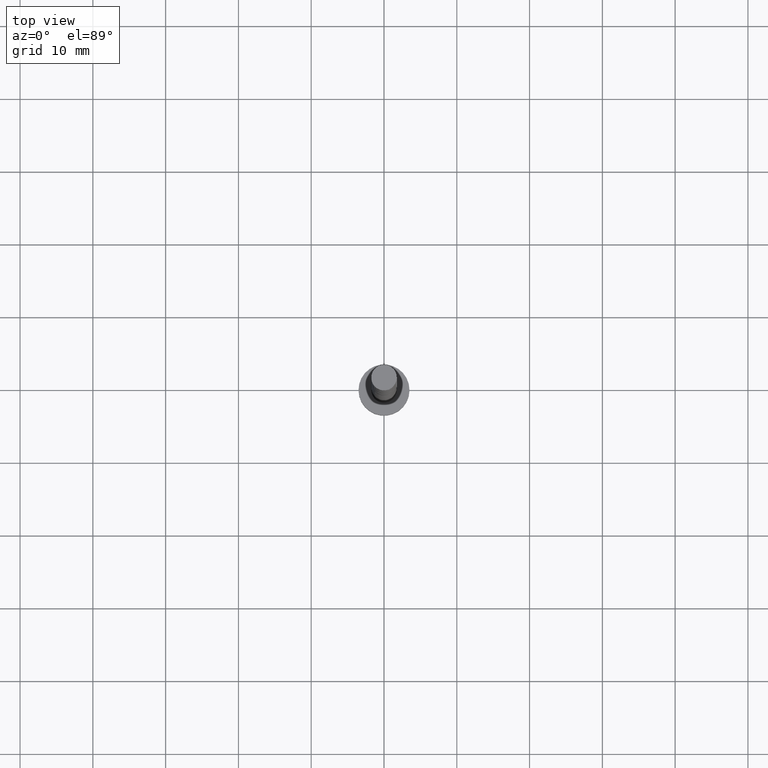
[diagram: clean part render]
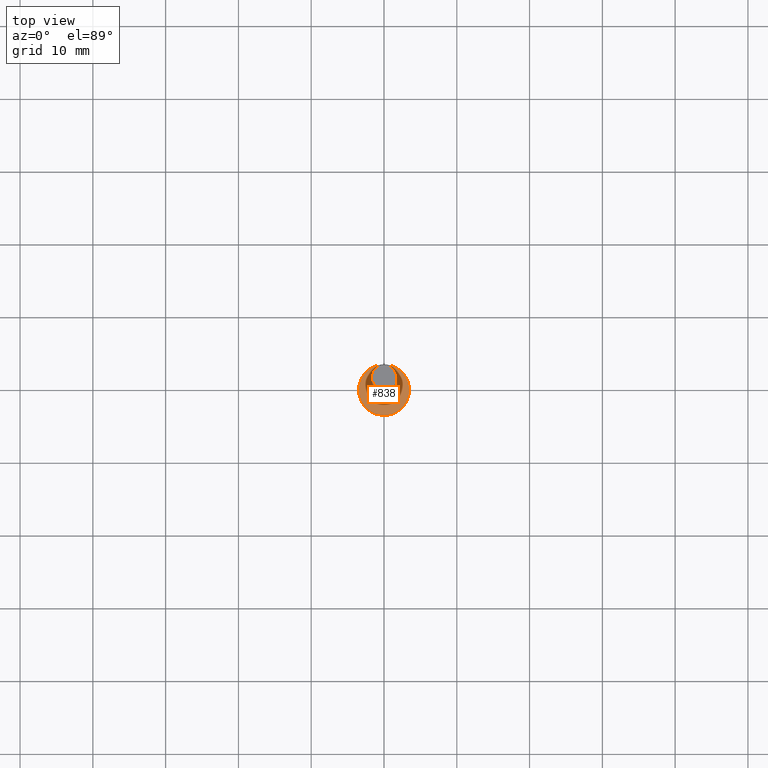
[diagram: same view with one face highlighted and labeled with its STEP entity id]
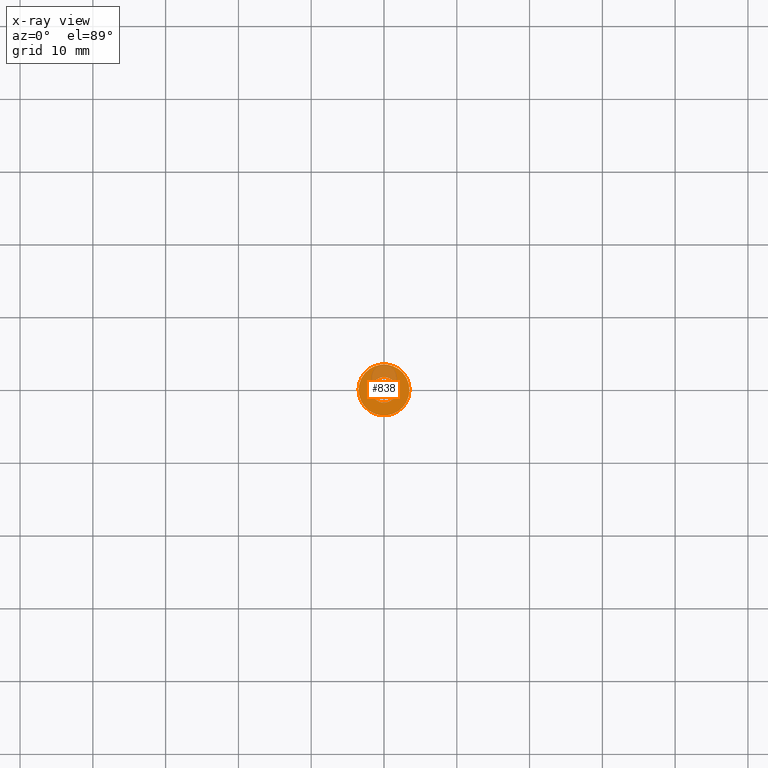
[diagram: x-ray of the same camera — body ghosted, the highlighted face saturated]
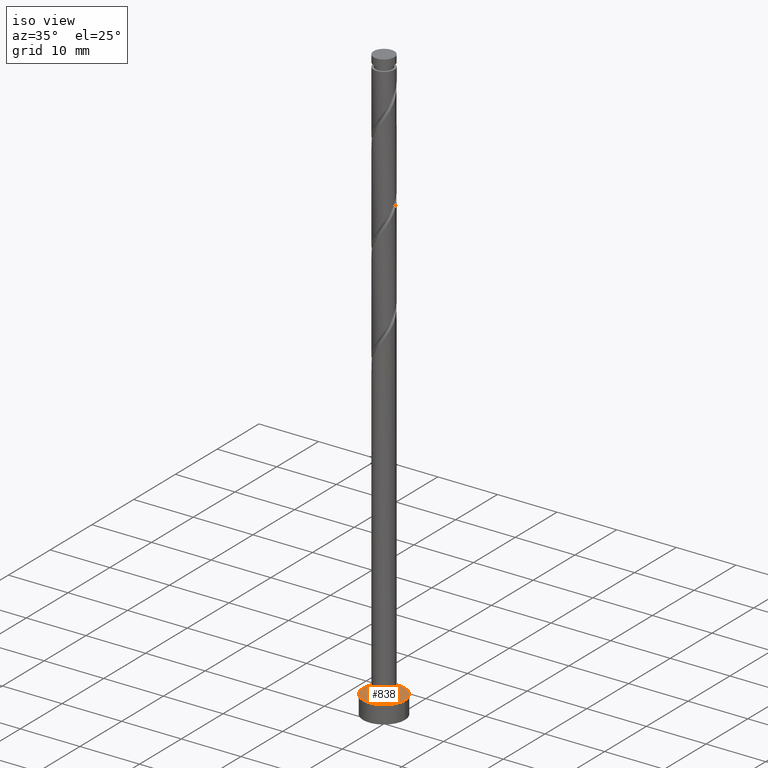
[diagram: same view with one face highlighted and labeled with its STEP entity id]
A machine part, top view. The second image highlights one B-rep face of the part: STEP entity #838.
The next image is the same camera in x-ray: the body ghosted, the highlighted face saturated — about 21% of this face is hidden behind the body in this view.
A second angle (iso view) of the same face is appended — the face is thin or edge-on in the first view.
In plain terms, the highlighted planar face has unit normal (0, 0, 1).
Its self-contained STEP definition (entity closure, byte-faithful):
#46 = CARTESIAN_POINT ( 'NONE',  ( 1.750000000000000000, 2.143131898507867804E-16, 3.000000000000000000 ) ) ;
#178 = EDGE_CURVE ( 'NONE', #1166, #1127, #1300, .T. ) ;
#180 = ORIENTED_EDGE ( 'NONE', *, *, #882, .T. ) ;
#206 = CIRCLE ( 'NONE', #448, 3.500000000000000000 ) ;
#218 = PLANE ( 'NONE',  #733 ) ;
#222 = VERTEX_POINT ( 'NONE', #326 ) ;
#245 = EDGE_CURVE ( 'NONE', #222, #629, #1126, .T. ) ;
#284 = AXIS2_PLACEMENT_3D ( 'NONE', #904, #1133, #667 ) ;
#323 = FACE_BOUND ( 'NONE', #1020, .T. ) ;
#326 = CARTESIAN_POINT ( 'NONE',  ( -3.500000000000000000, 0.000000000000000000, 3.000000000000000000 ) ) ;
#331 = DIRECTION ( 'NONE',  ( 1.000000000000000000, 0.000000000000000000, -0.000000000000000000 ) ) ;
#391 = EDGE_CURVE ( 'NONE', #1127, #1166, #1154, .T. ) ;
#448 = AXIS2_PLACEMENT_3D ( 'NONE', #690, #1460, #582 ) ;
#462 = FACE_OUTER_BOUND ( 'NONE', #918, .T. ) ;
#464 = DIRECTION ( 'NONE',  ( 1.000000000000000000, 0.000000000000000000, 0.000000000000000000 ) ) ;
#471 = CARTESIAN_POINT ( 'NONE',  ( 0.000000000000000000, 0.000000000000000000, 3.000000000000000000 ) ) ;
#514 = DIRECTION ( 'NONE',  ( 1.000000000000000000, 0.000000000000000000, 0.000000000000000000 ) ) ;
#566 = CARTESIAN_POINT ( 'NONE',  ( 0.000000000000000000, 0.000000000000000000, 3.000000000000000000 ) ) ;
#582 = DIRECTION ( 'NONE',  ( 1.000000000000000000, 0.000000000000000000, 0.000000000000000000 ) ) ;
#629 = VERTEX_POINT ( 'NONE', #630 ) ;
#630 = CARTESIAN_POINT ( 'NONE',  ( 3.500000000000000000, 4.286263797015736595E-16, 3.000000000000000000 ) ) ;
#667 = DIRECTION ( 'NONE',  ( 1.000000000000000000, 0.000000000000000000, 0.000000000000000000 ) ) ;
#690 = CARTESIAN_POINT ( 'NONE',  ( 0.000000000000000000, 0.000000000000000000, 3.000000000000000000 ) ) ;
#733 = AXIS2_PLACEMENT_3D ( 'NONE', #566, #1016, #331 ) ;
#791 = DIRECTION ( 'NONE',  ( 0.000000000000000000, 0.000000000000000000, 1.000000000000000000 ) ) ;
#838 = ADVANCED_FACE ( 'NONE', ( #323, #462 ), #218, .T. ) ;
#842 = DIRECTION ( 'NONE',  ( 0.000000000000000000, 0.000000000000000000, 1.000000000000000000 ) ) ;
#882 = EDGE_CURVE ( 'NONE', #629, #222, #206, .T. ) ;
#884 = ORIENTED_EDGE ( 'NONE', *, *, #245, .T. ) ;
#889 = ORIENTED_EDGE ( 'NONE', *, *, #178, .F. ) ;
#904 = CARTESIAN_POINT ( 'NONE',  ( 0.000000000000000000, 0.000000000000000000, 3.000000000000000000 ) ) ;
#918 = EDGE_LOOP ( 'NONE', ( #884, #180 ) ) ;
#919 = AXIS2_PLACEMENT_3D ( 'NONE', #471, #791, #464 ) ;
#972 = CARTESIAN_POINT ( 'NONE',  ( -1.750000000000000000, 0.000000000000000000, 3.000000000000000000 ) ) ;
#1016 = DIRECTION ( 'NONE',  ( 0.000000000000000000, 0.000000000000000000, 1.000000000000000000 ) ) ;
#1020 = EDGE_LOOP ( 'NONE', ( #889, #1393 ) ) ;
#1049 = CARTESIAN_POINT ( 'NONE',  ( 0.000000000000000000, 0.000000000000000000, 3.000000000000000000 ) ) ;
#1126 = CIRCLE ( 'NONE', #284, 3.500000000000000000 ) ;
#1127 = VERTEX_POINT ( 'NONE', #46 ) ;
#1133 = DIRECTION ( 'NONE',  ( 0.000000000000000000, 0.000000000000000000, 1.000000000000000000 ) ) ;
#1154 = CIRCLE ( 'NONE', #1342, 1.750000000000000000 ) ;
#1166 = VERTEX_POINT ( 'NONE', #972 ) ;
#1300 = CIRCLE ( 'NONE', #919, 1.750000000000000000 ) ;
#1342 = AXIS2_PLACEMENT_3D ( 'NONE', #1049, #842, #514 ) ;
#1393 = ORIENTED_EDGE ( 'NONE', *, *, #391, .F. ) ;
#1460 = DIRECTION ( 'NONE',  ( 0.000000000000000000, 0.000000000000000000, 1.000000000000000000 ) ) ;